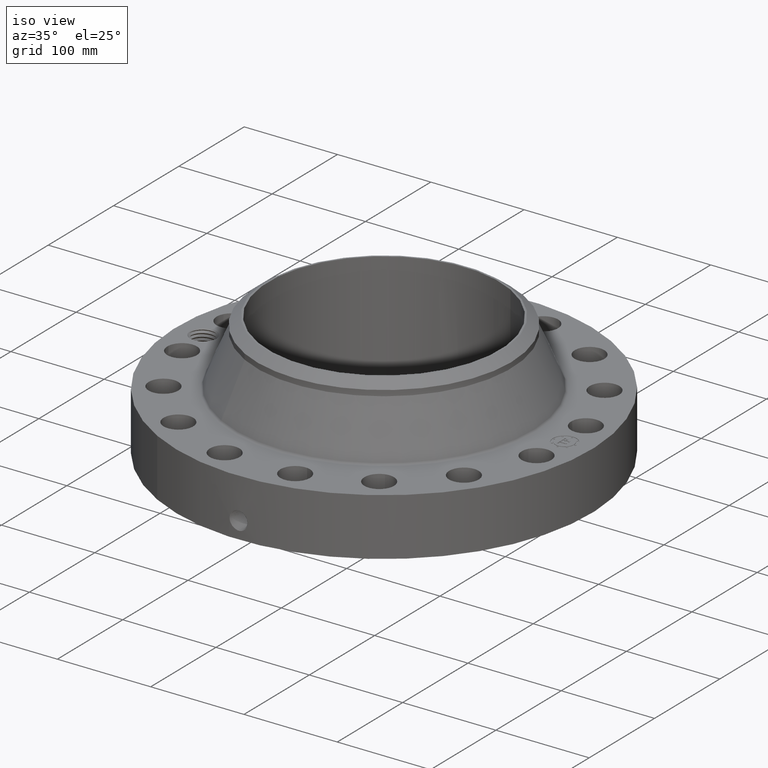
[diagram: clean part render]
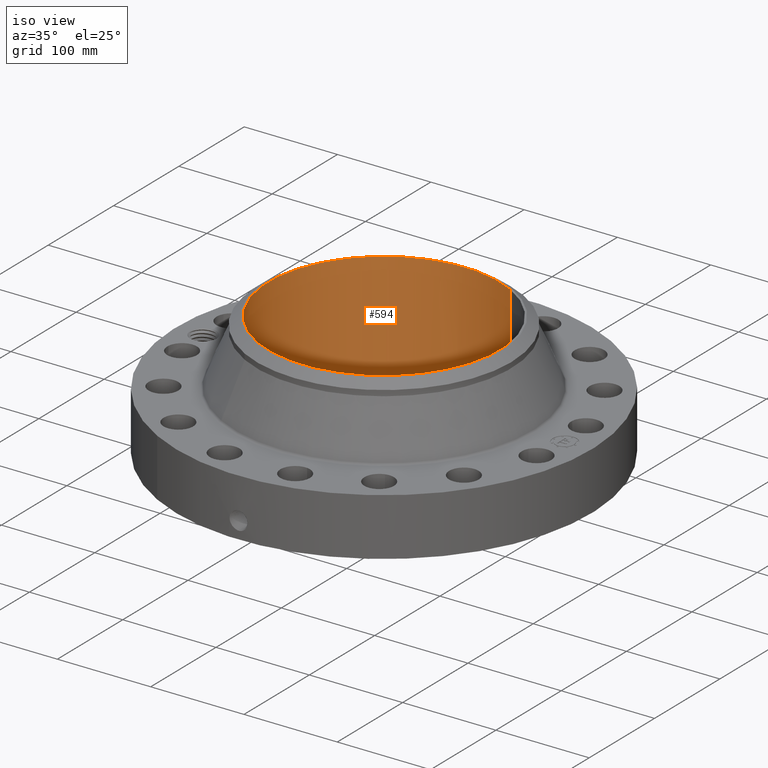
[diagram: same view with one face highlighted and labeled with its STEP entity id]
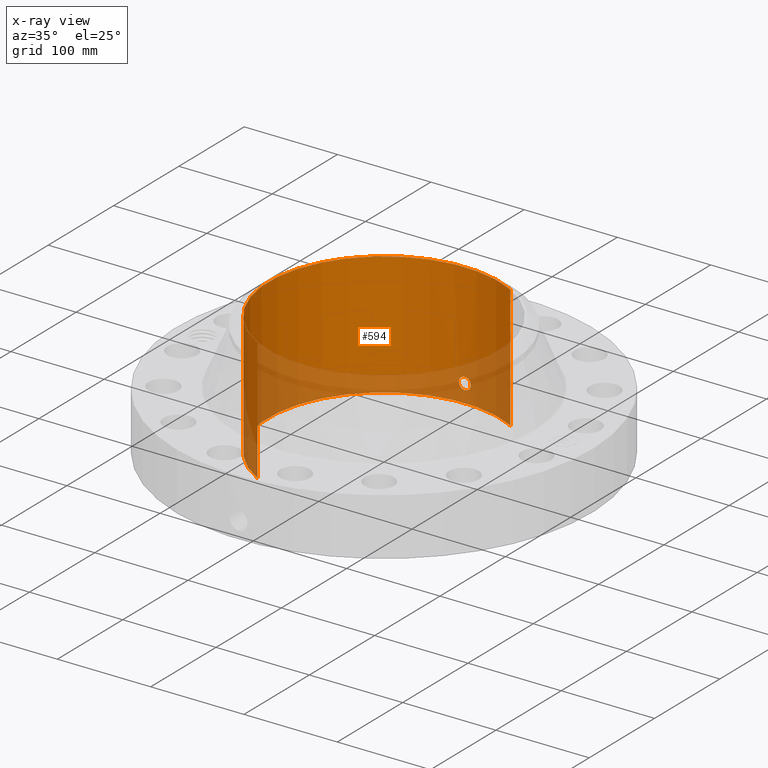
[diagram: x-ray of the same camera — body ghosted, the highlighted face saturated]
A machine part, iso view. The second image highlights one B-rep face of the part: STEP entity #594.
The next image is the same camera in x-ray: the body ghosted, the highlighted face saturated — about 26% of this face is hidden behind the body in this view.
In plain terms, the highlighted cylindrical surface (partial cylindrical patch) has radius 123.825 mm, axis along (0, 0, -1).
Its self-contained STEP definition (entity closure, byte-faithful):
#232=AXIS2_PLACEMENT_3D('Cylinder Axis2P3D',#229,#230,#231) ;
#533=AXIS2_PLACEMENT_3D('Circle Axis2P3D',#531,#532,$) ;
#543=AXIS2_PLACEMENT_3D('Circle Axis2P3D',#541,#542,$) ;
#229=CARTESIAN_POINT('Axis2P3D Location',(0.,0.,2.59600000001)) ;
#238=CARTESIAN_POINT('Vertex',(2.3371995007,4.27821498923,5.19200000002)) ;
#240=CARTESIAN_POINT('Vertex',(-2.3371995007,-4.27821498923,5.19200000002)) ;
#243=CARTESIAN_POINT('Line Origine',(2.3371995007,4.27821498923,2.59600000001)) ;
#247=CARTESIAN_POINT('Vertex',(2.3371995007,4.27821498923,-1.56655091349E-014)) ;
#254=CARTESIAN_POINT('Vertex',(-2.3371995007,-4.27821498923,-1.56655091349E-014)) ;
#257=CARTESIAN_POINT('Line Origine',(-2.3371995007,-4.27821498923,2.59600000001)) ;
#531=CARTESIAN_POINT('Axis2P3D Location',(0.,0.,5.19200000002)) ;
#541=CARTESIAN_POINT('Axis2P3D Location',(0.,0.,-1.67844740731E-014)) ;
#553=CARTESIAN_POINT('Control Point',(0.219395640473,4.87006063136,0.869856384655)) ;
#554=CARTESIAN_POINT('Control Point',(0.206921744637,4.87062257885,0.892689697824)) ;
#555=CARTESIAN_POINT('Control Point',(0.191478394832,4.87127828143,0.913898462021)) ;
#556=CARTESIAN_POINT('Control Point',(0.173345566542,4.87197707092,0.932969846629)) ;
#557=CARTESIAN_POINT('Control Point',(0.112139222263,4.87399811607,0.98244722733)) ;
#558=CARTESIAN_POINT('Control Point',(0.0349864891809,4.87531118116,1.00597244939)) ;
#559=CARTESIAN_POINT('Control Point',(-0.0195554396226,4.87540934404,1.00761228032)) ;
#560=CARTESIAN_POINT('Control Point',(-0.124139352697,4.87396423206,0.982472446653)) ;
#561=CARTESIAN_POINT('Control Point',(-0.203183379775,4.87097270785,0.909566679459)) ;
#562=CARTESIAN_POINT('Control Point',(-0.232161815576,4.86949971364,0.86335497988)) ;
#563=CARTESIAN_POINT('Control Point',(-0.255832360069,4.868286833,0.785197541698)) ;
#564=CARTESIAN_POINT('Control Point',(-0.248297207582,4.86867260604,0.705806024555)) ;
#565=CARTESIAN_POINT('Control Point',(-0.242063087909,4.86899647574,0.679220415261)) ;
#566=CARTESIAN_POINT('Control Point',(-0.232324342999,4.86947819488,0.653809446581)) ;
#567=CARTESIAN_POINT('Control Point',(-0.219395640473,4.87006063136,0.630143615351)) ;
#568=CARTESIAN_POINT('Vertex',(0.219395640473,4.87006063136,0.869856384655)) ;
#570=CARTESIAN_POINT('Vertex',(-0.219395640473,4.87006063136,0.630143615351)) ;
#574=CARTESIAN_POINT('Control Point',(-0.219395640473,4.87006063136,0.630143615351)) ;
#575=CARTESIAN_POINT('Control Point',(-0.206921744644,4.87062257885,0.607310302194)) ;
#576=CARTESIAN_POINT('Control Point',(-0.191478394849,4.87127828143,0.586101538008)) ;
#577=CARTESIAN_POINT('Control Point',(-0.17334556652,4.87197707092,0.567030153359)) ;
#578=CARTESIAN_POINT('Control Point',(-0.112139222243,4.87399811607,0.517552772668)) ;
#579=CARTESIAN_POINT('Control Point',(-0.0349864891674,4.87531118116,0.494027550609)) ;
#580=CARTESIAN_POINT('Control Point',(0.0195554396086,4.87540934404,0.492387719688)) ;
#581=CARTESIAN_POINT('Control Point',(0.124139352666,4.87396423206,0.517527553341)) ;
#582=CARTESIAN_POINT('Control Point',(0.203183379735,4.87097270785,0.590433320512)) ;
#583=CARTESIAN_POINT('Control Point',(0.232161815593,4.86949971364,0.636645020178)) ;
#584=CARTESIAN_POINT('Control Point',(0.255832360072,4.868286833,0.714802458354)) ;
#585=CARTESIAN_POINT('Control Point',(0.248297207579,4.86867260604,0.794193975492)) ;
#586=CARTESIAN_POINT('Control Point',(0.242063087924,4.86899647574,0.820779584707)) ;
#587=CARTESIAN_POINT('Control Point',(0.232324343008,4.86947819488,0.846190553407)) ;
#588=CARTESIAN_POINT('Control Point',(0.219395640473,4.87006063136,0.869856384655)) ;
#230=DIRECTION('Axis2P3D Direction',(0.,0.,-0.0393700787402)) ;
#231=DIRECTION('Axis2P3D XDirection',(-0.0188750212049,-0.0345504945626,0.)) ;
#244=DIRECTION('Vector Direction',(0.,0.,-0.0393700787402)) ;
#258=DIRECTION('Vector Direction',(0.,0.,-0.0393700787402)) ;
#532=DIRECTION('Axis2P3D Direction',(0.,0.,-0.0393700787402)) ;
#542=DIRECTION('Axis2P3D Direction',(0.,0.,-0.0393700787402)) ;
#245=VECTOR('Line Direction',#244,0.0393700787402) ;
#259=VECTOR('Line Direction',#258,0.0393700787402) ;
#547=ORIENTED_EDGE('',*,*,#535,.F.) ;
#548=ORIENTED_EDGE('',*,*,#261,.T.) ;
#549=ORIENTED_EDGE('',*,*,#545,.T.) ;
#550=ORIENTED_EDGE('',*,*,#249,.F.) ;
#591=ORIENTED_EDGE('',*,*,#572,.F.) ;
#592=ORIENTED_EDGE('',*,*,#589,.F.) ;
#593=FACE_BOUND('',#590,.T.) ;
#594=ADVANCED_FACE('PartBody',(#551,#593),#233,.F.) ;
#552=B_SPLINE_CURVE_WITH_KNOTS('',5,(#553,#554,#555,#556,#557,#558,#559,#560,#561,#562,#563,#564,#565,#566,#567),.UNSPECIFIED.,.F.,.U.,(6,3,3,3,6),(0.,4.6741316188,14.0220348661,23.3720177479,28.2165713707),.UNSPECIFIED.) ;
#573=B_SPLINE_CURVE_WITH_KNOTS('',5,(#574,#575,#576,#577,#578,#579,#580,#581,#582,#583,#584,#585,#586,#587,#588),.UNSPECIFIED.,.F.,.U.,(6,3,3,3,6),(0.,4.67413161623,14.0220348647,23.3720177419,28.2165713683),.UNSPECIFIED.) ;
#534=CIRCLE('generated circle',#533,4.87500000002) ;
#544=CIRCLE('generated circle',#543,4.87500000002) ;
#233=CYLINDRICAL_SURFACE('generated cylinder',#232,4.87500000002) ;
#249=EDGE_CURVE('',#239,#248,#246,.T.) ;
#261=EDGE_CURVE('',#241,#255,#260,.T.) ;
#535=EDGE_CURVE('',#241,#239,#534,.T.) ;
#545=EDGE_CURVE('',#255,#248,#544,.T.) ;
#572=EDGE_CURVE('',#569,#571,#552,.T.) ;
#589=EDGE_CURVE('',#571,#569,#573,.T.) ;
#546=EDGE_LOOP('',(#547,#548,#549,#550)) ;
#590=EDGE_LOOP('',(#591,#592)) ;
#551=FACE_OUTER_BOUND('',#546,.T.) ;
#246=LINE('Line',#243,#245) ;
#260=LINE('Line',#257,#259) ;
#239=VERTEX_POINT('',#238) ;
#241=VERTEX_POINT('',#240) ;
#248=VERTEX_POINT('',#247) ;
#255=VERTEX_POINT('',#254) ;
#569=VERTEX_POINT('',#568) ;
#571=VERTEX_POINT('',#570) ;